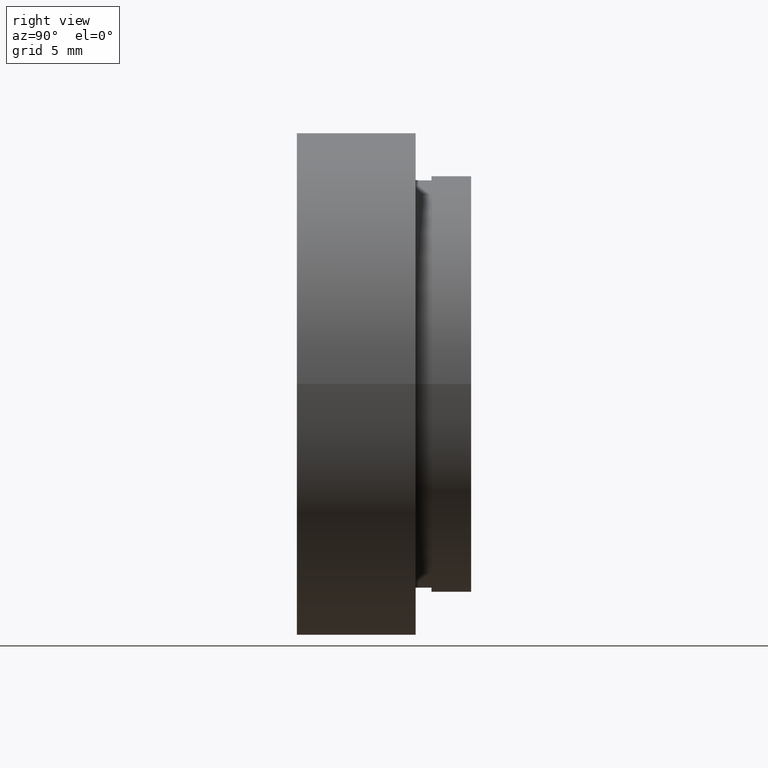
[diagram: clean part render]
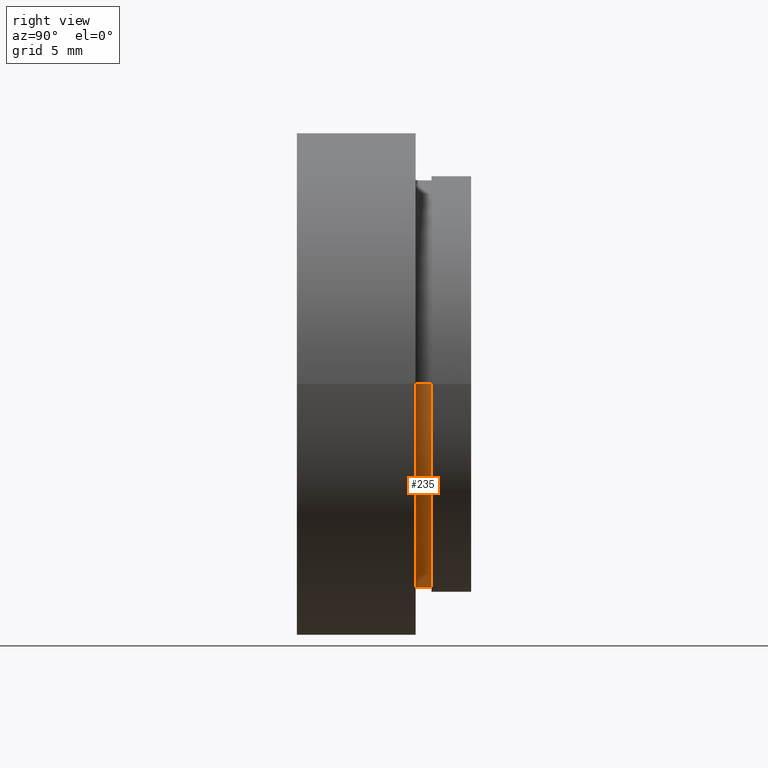
[diagram: same view with one face highlighted and labeled with its STEP entity id]
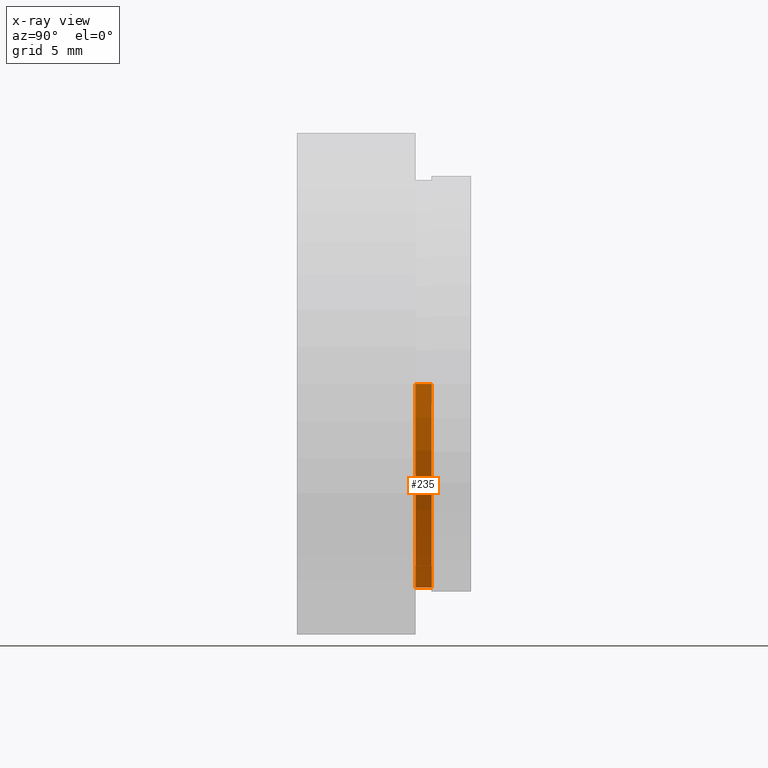
[diagram: x-ray of the same camera — body ghosted, the highlighted face saturated]
A machine part, right view. The second image highlights one B-rep face of the part: STEP entity #235.
The next image is the same camera in x-ray: the body ghosted, the highlighted face saturated — about 0% of this face is hidden behind the body in this view.
In plain terms, the highlighted cylindrical surface (partial cylindrical patch) has radius 12.9 mm, axis along (-0, 1, -0).
Its self-contained STEP definition (entity closure, byte-faithful):
#14 = EDGE_CURVE ( 'NONE', #468, #275, #129, .T. ) ;
#16 = CARTESIAN_POINT ( 'NONE',  ( -12.89999999999999900, 7.499999999999996400, 0.0000000000000000000 ) ) ;
#18 = VECTOR ( 'NONE', #560, 1000.000000000000000 ) ;
#29 = CARTESIAN_POINT ( 'NONE',  ( 1.149455719078122700E-015, 7.499999999999998200, 0.0000000000000000000 ) ) ;
#67 = DIRECTION ( 'NONE',  ( -1.000000000000000000, -1.344746880602176000E-016, 0.0000000000000000000 ) ) ;
#111 = AXIS2_PLACEMENT_3D ( 'NONE', #584, #300, #67 ) ;
#119 = EDGE_CURVE ( 'NONE', #132, #275, #349, .T. ) ;
#129 = CIRCLE ( 'NONE', #111, 12.90000000000000000 ) ;
#132 = VERTEX_POINT ( 'NONE', #16 ) ;
#152 = ORIENTED_EDGE ( 'NONE', *, *, #14, .F. ) ;
#161 = CYLINDRICAL_SURFACE ( 'NONE', #348, 12.90000000000000000 ) ;
#162 = ORIENTED_EDGE ( 'NONE', *, *, #119, .T. ) ;
#170 = CARTESIAN_POINT ( 'NONE',  ( -12.90000000000000000, 16.88601823708207700, 0.0000000000000000000 ) ) ;
#174 = EDGE_LOOP ( 'NONE', ( #391, #270, #162, #152 ) ) ;
#219 = DIRECTION ( 'NONE',  ( -1.224646799147351000E-016, 1.000000000000000000, -0.0000000000000000000 ) ) ;
#225 = VECTOR ( 'NONE', #590, 1000.000000000000000 ) ;
#230 = CARTESIAN_POINT ( 'NONE',  ( 12.90000000000000200, 7.500000000000000000, 1.579794370900085700E-015 ) ) ;
#235 = ADVANCED_FACE ( 'NONE', ( #477 ), #161, .T. ) ;
#264 = DIRECTION ( 'NONE',  ( -1.224646799147351000E-016, 1.000000000000000000, -0.0000000000000000000 ) ) ;
#266 = DIRECTION ( 'NONE',  ( -1.000000000000000000, 0.0000000000000000000, 0.0000000000000000000 ) ) ;
#270 = ORIENTED_EDGE ( 'NONE', *, *, #291, .T. ) ;
#275 = VERTEX_POINT ( 'NONE', #365 ) ;
#291 = EDGE_CURVE ( 'NONE', #436, #132, #528, .T. ) ;
#300 = DIRECTION ( 'NONE',  ( -1.224646799147351000E-016, 1.000000000000000000, -0.0000000000000000000 ) ) ;
#348 = AXIS2_PLACEMENT_3D ( 'NONE', #414, #219, #266 ) ;
#349 = LINE ( 'NONE', #170, #225 ) ;
#365 = CARTESIAN_POINT ( 'NONE',  ( -12.89999999999999900, 8.499999999999996400, 0.0000000000000000000 ) ) ;
#371 = CARTESIAN_POINT ( 'NONE',  ( 12.90000000000000200, 8.500000000000000000, 1.579794370900085700E-015 ) ) ;
#391 = ORIENTED_EDGE ( 'NONE', *, *, #393, .F. ) ;
#393 = EDGE_CURVE ( 'NONE', #436, #468, #420, .T. ) ;
#414 = CARTESIAN_POINT ( 'NONE',  ( 0.0000000000000000000, 16.88601823708207700, 0.0000000000000000000 ) ) ;
#415 = CARTESIAN_POINT ( 'NONE',  ( 12.90000000000000000, 16.88601823708207700, 1.579794370900085700E-015 ) ) ;
#420 = LINE ( 'NONE', #415, #18 ) ;
#436 = VERTEX_POINT ( 'NONE', #230 ) ;
#468 = VERTEX_POINT ( 'NONE', #371 ) ;
#477 = FACE_OUTER_BOUND ( 'NONE', #174, .T. ) ;
#497 = AXIS2_PLACEMENT_3D ( 'NONE', #29, #264, #557 ) ;
#528 = CIRCLE ( 'NONE', #497, 12.90000000000000000 ) ;
#557 = DIRECTION ( 'NONE',  ( -1.000000000000000000, -1.344746880602176000E-016, 0.0000000000000000000 ) ) ;
#560 = DIRECTION ( 'NONE',  ( -1.224646799147351000E-016, 1.000000000000000000, -0.0000000000000000000 ) ) ;
#584 = CARTESIAN_POINT ( 'NONE',  ( 1.026991039163387700E-015, 8.499999999999998200, 0.0000000000000000000 ) ) ;
#590 = DIRECTION ( 'NONE',  ( -1.224646799147351000E-016, 1.000000000000000000, -0.0000000000000000000 ) ) ;